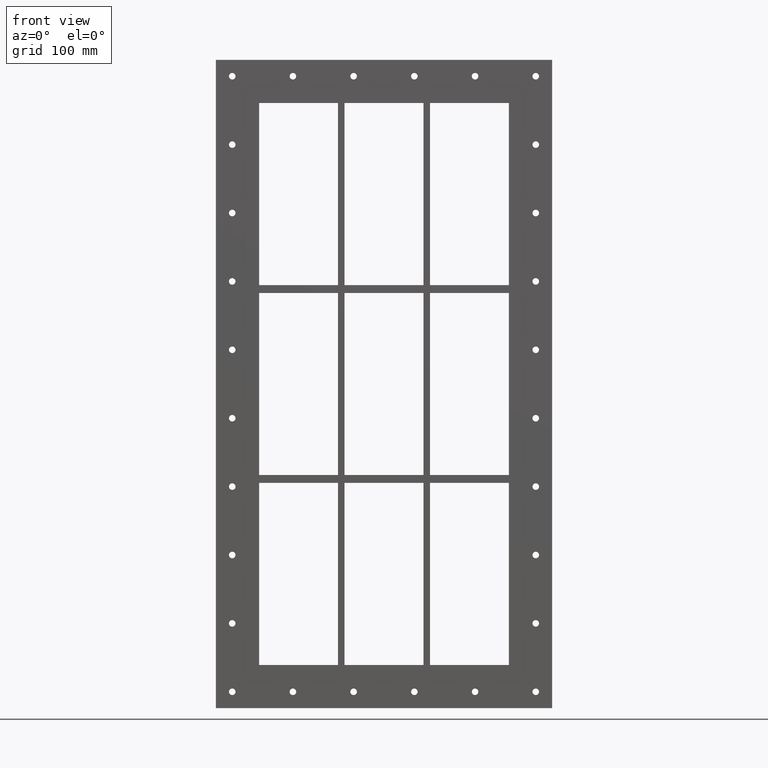
[diagram: clean part render]
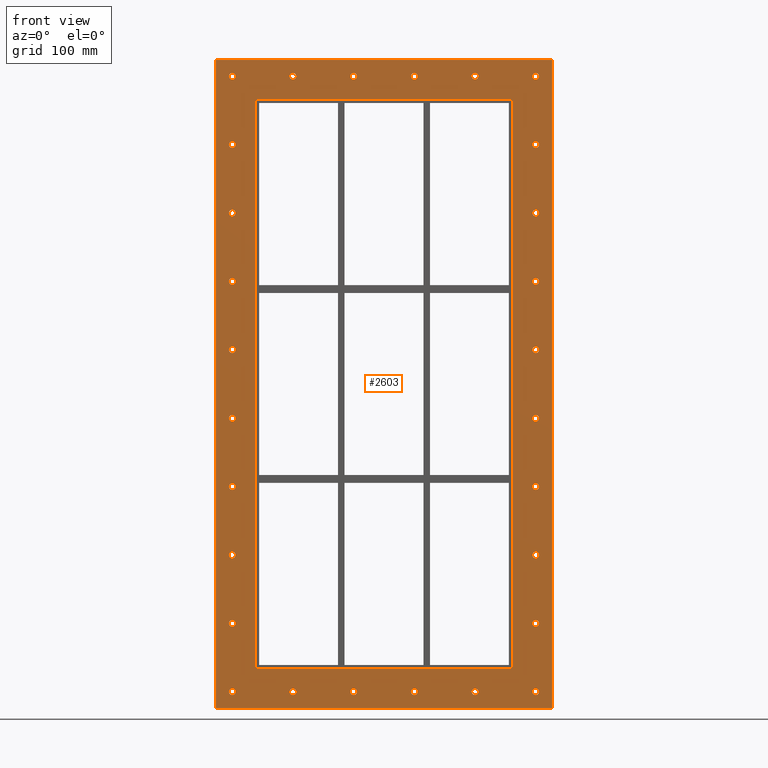
[diagram: same view with one face highlighted and labeled with its STEP entity id]
A machine part, front view. The second image highlights one B-rep face of the part: STEP entity #2603.
In plain terms, the highlighted planar face has unit normal (0, 1, 0).
Its self-contained STEP definition (entity closure, byte-faithful):
#84=CARTESIAN_POINT('',(-226.75000000000009,0.0,-470.00000000000006));
#85=VERTEX_POINT('',#84);
#86=CARTESIAN_POINT('',(-231.75000000000009,0.0,-470.00000000000006));
#87=DIRECTION('',(0.0,1.0,0.0));
#88=DIRECTION('',(1.0,0.0,0.0));
#89=AXIS2_PLACEMENT_3D('',#86,#87,#88);
#90=CIRCLE('',#89,5.0);
#91=EDGE_CURVE('',#85,#85,#90,.T.);
#112=CARTESIAN_POINT('',(236.75,0.0,-365.56000000000006));
#113=VERTEX_POINT('',#112);
#114=CARTESIAN_POINT('',(231.75,0.0,-365.56000000000006));
#115=DIRECTION('',(0.0,1.0,0.0));
#116=DIRECTION('',(1.0,0.0,0.0));
#117=AXIS2_PLACEMENT_3D('',#114,#115,#116);
#118=CIRCLE('',#117,5.0);
#119=EDGE_CURVE('',#113,#113,#118,.T.);
#140=CARTESIAN_POINT('',(-226.75000000000009,0.0,-365.56000000000006));
#141=VERTEX_POINT('',#140);
#142=CARTESIAN_POINT('',(-231.75000000000009,0.0,-365.56000000000006));
#143=DIRECTION('',(0.0,1.0,0.0));
#144=DIRECTION('',(1.0,0.0,0.0));
#145=AXIS2_PLACEMENT_3D('',#142,#143,#144);
#146=CIRCLE('',#145,5.0);
#147=EDGE_CURVE('',#141,#141,#146,.T.);
#168=CARTESIAN_POINT('',(236.75,0.0,-261.12));
#169=VERTEX_POINT('',#168);
#170=CARTESIAN_POINT('',(231.75,0.0,-261.12));
#171=DIRECTION('',(0.0,1.0,0.0));
#172=DIRECTION('',(1.0,0.0,0.0));
#173=AXIS2_PLACEMENT_3D('',#170,#171,#172);
#174=CIRCLE('',#173,5.0);
#175=EDGE_CURVE('',#169,#169,#174,.T.);
#196=CARTESIAN_POINT('',(-226.75000000000009,0.0,-261.12));
#197=VERTEX_POINT('',#196);
#198=CARTESIAN_POINT('',(-231.75000000000009,0.0,-261.12));
#199=DIRECTION('',(0.0,1.0,0.0));
#200=DIRECTION('',(1.0,0.0,0.0));
#201=AXIS2_PLACEMENT_3D('',#198,#199,#200);
#202=CIRCLE('',#201,5.0);
#203=EDGE_CURVE('',#197,#197,#202,.T.);
#224=CARTESIAN_POINT('',(236.75,0.0,-156.67999999999998));
#225=VERTEX_POINT('',#224);
#226=CARTESIAN_POINT('',(231.75,0.0,-156.67999999999998));
#227=DIRECTION('',(0.0,1.0,0.0));
#228=DIRECTION('',(1.0,0.0,0.0));
#229=AXIS2_PLACEMENT_3D('',#226,#227,#228);
#230=CIRCLE('',#229,5.0);
#231=EDGE_CURVE('',#225,#225,#230,.T.);
#252=CARTESIAN_POINT('',(-226.75000000000009,0.0,-156.67999999999998));
#253=VERTEX_POINT('',#252);
#254=CARTESIAN_POINT('',(-231.75000000000009,0.0,-156.67999999999998));
#255=DIRECTION('',(0.0,1.0,0.0));
#256=DIRECTION('',(1.0,0.0,0.0));
#257=AXIS2_PLACEMENT_3D('',#254,#255,#256);
#258=CIRCLE('',#257,5.0);
#259=EDGE_CURVE('',#253,#253,#258,.T.);
#280=CARTESIAN_POINT('',(236.75,0.0,-52.240000000000023));
#281=VERTEX_POINT('',#280);
#282=CARTESIAN_POINT('',(231.75,0.0,-52.240000000000023));
#283=DIRECTION('',(0.0,1.0,0.0));
#284=DIRECTION('',(1.0,0.0,0.0));
#285=AXIS2_PLACEMENT_3D('',#282,#283,#284);
#286=CIRCLE('',#285,5.0);
#287=EDGE_CURVE('',#281,#281,#286,.T.);
#308=CARTESIAN_POINT('',(-226.75000000000009,0.0,-52.240000000000023));
#309=VERTEX_POINT('',#308);
#310=CARTESIAN_POINT('',(-231.75000000000009,0.0,-52.240000000000023));
#311=DIRECTION('',(0.0,1.0,0.0));
#312=DIRECTION('',(1.0,0.0,0.0));
#313=AXIS2_PLACEMENT_3D('',#310,#311,#312);
#314=CIRCLE('',#313,5.0);
#315=EDGE_CURVE('',#309,#309,#314,.T.);
#336=CARTESIAN_POINT('',(236.75,0.0,52.200000000000003));
#337=VERTEX_POINT('',#336);
#338=CARTESIAN_POINT('',(231.75,0.0,52.200000000000003));
#339=DIRECTION('',(0.0,1.0,0.0));
#340=DIRECTION('',(1.0,0.0,0.0));
#341=AXIS2_PLACEMENT_3D('',#338,#339,#340);
#342=CIRCLE('',#341,5.0);
#343=EDGE_CURVE('',#337,#337,#342,.T.);
#364=CARTESIAN_POINT('',(-226.75000000000009,0.0,52.200000000000003));
#365=VERTEX_POINT('',#364);
#366=CARTESIAN_POINT('',(-231.75000000000009,0.0,52.200000000000003));
#367=DIRECTION('',(0.0,1.0,0.0));
#368=DIRECTION('',(1.0,0.0,0.0));
#369=AXIS2_PLACEMENT_3D('',#366,#367,#368);
#370=CIRCLE('',#369,5.0);
#371=EDGE_CURVE('',#365,#365,#370,.T.);
#392=CARTESIAN_POINT('',(236.75,0.0,156.64000000000004));
#393=VERTEX_POINT('',#392);
#394=CARTESIAN_POINT('',(231.75,0.0,156.64000000000004));
#395=DIRECTION('',(0.0,1.0,0.0));
#396=DIRECTION('',(1.0,0.0,0.0));
#397=AXIS2_PLACEMENT_3D('',#394,#395,#396);
#398=CIRCLE('',#397,5.0);
#399=EDGE_CURVE('',#393,#393,#398,.T.);
#420=CARTESIAN_POINT('',(-226.75000000000009,0.0,156.64000000000004));
#421=VERTEX_POINT('',#420);
#422=CARTESIAN_POINT('',(-231.75000000000009,0.0,156.64000000000004));
#423=DIRECTION('',(0.0,1.0,0.0));
#424=DIRECTION('',(1.0,0.0,0.0));
#425=AXIS2_PLACEMENT_3D('',#422,#423,#424);
#426=CIRCLE('',#425,5.0);
#427=EDGE_CURVE('',#421,#421,#426,.T.);
#448=CARTESIAN_POINT('',(236.75,0.0,261.07999999999998));
#449=VERTEX_POINT('',#448);
#450=CARTESIAN_POINT('',(231.75,0.0,261.07999999999998));
#451=DIRECTION('',(0.0,1.0,0.0));
#452=DIRECTION('',(1.0,0.0,0.0));
#453=AXIS2_PLACEMENT_3D('',#450,#451,#452);
#454=CIRCLE('',#453,5.0);
#455=EDGE_CURVE('',#449,#449,#454,.T.);
#476=CARTESIAN_POINT('',(-226.75000000000009,0.0,261.07999999999998));
#477=VERTEX_POINT('',#476);
#478=CARTESIAN_POINT('',(-231.75000000000009,0.0,261.07999999999998));
#479=DIRECTION('',(0.0,1.0,0.0));
#480=DIRECTION('',(1.0,0.0,0.0));
#481=AXIS2_PLACEMENT_3D('',#478,#479,#480);
#482=CIRCLE('',#481,5.0);
#483=EDGE_CURVE('',#477,#477,#482,.T.);
#504=CARTESIAN_POINT('',(236.75,0.0,365.51999999999998));
#505=VERTEX_POINT('',#504);
#506=CARTESIAN_POINT('',(231.75,0.0,365.51999999999998));
#507=DIRECTION('',(0.0,1.0,0.0));
#508=DIRECTION('',(1.0,0.0,0.0));
#509=AXIS2_PLACEMENT_3D('',#506,#507,#508);
#510=CIRCLE('',#509,5.0);
#511=EDGE_CURVE('',#505,#505,#510,.T.);
#532=CARTESIAN_POINT('',(-226.75000000000009,0.0,365.51999999999998));
#533=VERTEX_POINT('',#532);
#534=CARTESIAN_POINT('',(-231.75000000000009,0.0,365.51999999999998));
#535=DIRECTION('',(0.0,1.0,0.0));
#536=DIRECTION('',(1.0,0.0,0.0));
#537=AXIS2_PLACEMENT_3D('',#534,#535,#536);
#538=CIRCLE('',#537,5.0);
#539=EDGE_CURVE('',#533,#533,#538,.T.);
#560=CARTESIAN_POINT('',(-134.05000000000004,0.0,469.96000000000004));
#561=VERTEX_POINT('',#560);
#562=CARTESIAN_POINT('',(-139.05000000000004,0.0,469.96000000000004));
#563=DIRECTION('',(0.0,1.0,0.0));
#564=DIRECTION('',(1.0,0.0,0.0));
#565=AXIS2_PLACEMENT_3D('',#562,#563,#564);
#566=CIRCLE('',#565,5.0);
#567=EDGE_CURVE('',#561,#561,#566,.T.);
#588=CARTESIAN_POINT('',(-134.05000000000004,0.0,-470.00000000000006));
#589=VERTEX_POINT('',#588);
#590=CARTESIAN_POINT('',(-139.05000000000004,0.0,-470.00000000000006));
#591=DIRECTION('',(0.0,1.0,0.0));
#592=DIRECTION('',(1.0,0.0,0.0));
#593=AXIS2_PLACEMENT_3D('',#590,#591,#592);
#594=CIRCLE('',#593,5.0);
#595=EDGE_CURVE('',#589,#589,#594,.T.);
#616=CARTESIAN_POINT('',(-41.349999999999994,0.0,469.96000000000004));
#617=VERTEX_POINT('',#616);
#618=CARTESIAN_POINT('',(-46.349999999999994,0.0,469.96000000000004));
#619=DIRECTION('',(0.0,1.0,0.0));
#620=DIRECTION('',(1.0,0.0,0.0));
#621=AXIS2_PLACEMENT_3D('',#618,#619,#620);
#622=CIRCLE('',#621,5.0);
#623=EDGE_CURVE('',#617,#617,#622,.T.);
#644=CARTESIAN_POINT('',(-41.349999999999994,0.0,-470.00000000000006));
#645=VERTEX_POINT('',#644);
#646=CARTESIAN_POINT('',(-46.349999999999994,0.0,-470.00000000000006));
#647=DIRECTION('',(0.0,1.0,0.0));
#648=DIRECTION('',(1.0,0.0,0.0));
#649=AXIS2_PLACEMENT_3D('',#646,#647,#648);
#650=CIRCLE('',#649,5.0);
#651=EDGE_CURVE('',#645,#645,#650,.T.);
#672=CARTESIAN_POINT('',(51.34999999999998,0.0,469.96000000000004));
#673=VERTEX_POINT('',#672);
#674=CARTESIAN_POINT('',(46.34999999999998,0.0,469.96000000000004));
#675=DIRECTION('',(0.0,1.0,0.0));
#676=DIRECTION('',(1.0,0.0,0.0));
#677=AXIS2_PLACEMENT_3D('',#674,#675,#676);
#678=CIRCLE('',#677,5.0);
#679=EDGE_CURVE('',#673,#673,#678,.T.);
#700=CARTESIAN_POINT('',(51.34999999999998,0.0,-470.00000000000006));
#701=VERTEX_POINT('',#700);
#702=CARTESIAN_POINT('',(46.34999999999998,0.0,-470.00000000000006));
#703=DIRECTION('',(0.0,1.0,0.0));
#704=DIRECTION('',(1.0,0.0,0.0));
#705=AXIS2_PLACEMENT_3D('',#702,#703,#704);
#706=CIRCLE('',#705,5.0);
#707=EDGE_CURVE('',#701,#701,#706,.T.);
#728=CARTESIAN_POINT('',(144.04999999999998,0.0,469.96000000000004));
#729=VERTEX_POINT('',#728);
#730=CARTESIAN_POINT('',(139.04999999999998,0.0,469.96000000000004));
#731=DIRECTION('',(0.0,1.0,0.0));
#732=DIRECTION('',(1.0,0.0,0.0));
#733=AXIS2_PLACEMENT_3D('',#730,#731,#732);
#734=CIRCLE('',#733,5.0);
#735=EDGE_CURVE('',#729,#729,#734,.T.);
#756=CARTESIAN_POINT('',(144.04999999999998,0.0,-470.00000000000006));
#757=VERTEX_POINT('',#756);
#758=CARTESIAN_POINT('',(139.04999999999998,0.0,-470.00000000000006));
#759=DIRECTION('',(0.0,1.0,0.0));
#760=DIRECTION('',(1.0,0.0,0.0));
#761=AXIS2_PLACEMENT_3D('',#758,#759,#760);
#762=CIRCLE('',#761,5.0);
#763=EDGE_CURVE('',#757,#757,#762,.T.);
#784=CARTESIAN_POINT('',(236.75,0.0,-470.00000000000006));
#785=VERTEX_POINT('',#784);
#786=CARTESIAN_POINT('',(231.75,0.0,-470.00000000000006));
#787=DIRECTION('',(0.0,1.0,0.0));
#788=DIRECTION('',(1.0,0.0,0.0));
#789=AXIS2_PLACEMENT_3D('',#786,#787,#788);
#790=CIRCLE('',#789,5.0);
#791=EDGE_CURVE('',#785,#785,#790,.T.);
#812=CARTESIAN_POINT('',(-226.75000000000009,0.0,469.96000000000004));
#813=VERTEX_POINT('',#812);
#814=CARTESIAN_POINT('',(-231.75000000000009,0.0,469.96000000000004));
#815=DIRECTION('',(0.0,1.0,0.0));
#816=DIRECTION('',(1.0,0.0,0.0));
#817=AXIS2_PLACEMENT_3D('',#814,#815,#816);
#818=CIRCLE('',#817,5.0);
#819=EDGE_CURVE('',#813,#813,#818,.T.);
#840=CARTESIAN_POINT('',(236.75,0.0,469.96000000000004));
#841=VERTEX_POINT('',#840);
#842=CARTESIAN_POINT('',(231.75,0.0,469.96000000000004));
#843=DIRECTION('',(0.0,1.0,0.0));
#844=DIRECTION('',(1.0,0.0,0.0));
#845=AXIS2_PLACEMENT_3D('',#842,#843,#844);
#846=CIRCLE('',#845,5.0);
#847=EDGE_CURVE('',#841,#841,#846,.T.);
#2410=CARTESIAN_POINT('',(0.0,0.0,0.0));
#2411=DIRECTION('',(0.0,1.0,0.0));
#2412=DIRECTION('',(0.0,0.0,1.0));
#2413=AXIS2_PLACEMENT_3D('',#2410,#2411,#2412);
#2414=PLANE('',#2413);
#2415=CARTESIAN_POINT('',(-256.75000000000006,0.0,495.00000000000006));
#2416=VERTEX_POINT('',#2415);
#2417=CARTESIAN_POINT('',(256.75000000000006,0.0,495.00000000000006));
#2418=VERTEX_POINT('',#2417);
#2419=CARTESIAN_POINT('',(-256.75000000000006,0.0,495.00000000000006));
#2420=DIRECTION('',(1.0,0.0,0.0));
#2421=VECTOR('',#2420,513.50000000000011);
#2422=LINE('',#2419,#2421);
#2423=EDGE_CURVE('',#2416,#2418,#2422,.T.);
#2424=ORIENTED_EDGE('',*,*,#2423,.F.);
#2425=CARTESIAN_POINT('',(-256.75000000000006,0.0,-495.00000000000006));
#2426=VERTEX_POINT('',#2425);
#2427=CARTESIAN_POINT('',(-256.75000000000006,0.0,-495.00000000000006));
#2428=DIRECTION('',(0.0,0.0,1.0));
#2429=VECTOR('',#2428,990.00000000000011);
#2430=LINE('',#2427,#2429);
#2431=EDGE_CURVE('',#2426,#2416,#2430,.T.);
#2432=ORIENTED_EDGE('',*,*,#2431,.F.);
#2433=CARTESIAN_POINT('',(256.75000000000006,0.0,-495.00000000000006));
#2434=VERTEX_POINT('',#2433);
#2435=CARTESIAN_POINT('',(256.75000000000006,0.0,-495.00000000000006));
#2436=DIRECTION('',(-1.0,0.0,0.0));
#2437=VECTOR('',#2436,513.50000000000011);
#2438=LINE('',#2435,#2437);
#2439=EDGE_CURVE('',#2434,#2426,#2438,.T.);
#2440=ORIENTED_EDGE('',*,*,#2439,.F.);
#2441=CARTESIAN_POINT('',(256.75000000000006,0.0,495.00000000000006));
#2442=DIRECTION('',(0.0,0.0,-1.0));
#2443=VECTOR('',#2442,990.00000000000011);
#2444=LINE('',#2441,#2443);
#2445=EDGE_CURVE('',#2418,#2434,#2444,.T.);
#2446=ORIENTED_EDGE('',*,*,#2445,.F.);
#2447=EDGE_LOOP('',(#2424,#2432,#2440,#2446));
#2448=FACE_OUTER_BOUND('',#2447,.T.);
#2449=ORIENTED_EDGE('',*,*,#91,.T.);
#2450=EDGE_LOOP('',(#2449));
#2451=FACE_BOUND('',#2450,.T.);
#2452=ORIENTED_EDGE('',*,*,#119,.T.);
#2453=EDGE_LOOP('',(#2452));
#2454=FACE_BOUND('',#2453,.T.);
#2455=ORIENTED_EDGE('',*,*,#147,.T.);
#2456=EDGE_LOOP('',(#2455));
#2457=FACE_BOUND('',#2456,.T.);
#2458=ORIENTED_EDGE('',*,*,#175,.T.);
#2459=EDGE_LOOP('',(#2458));
#2460=FACE_BOUND('',#2459,.T.);
#2461=ORIENTED_EDGE('',*,*,#203,.T.);
#2462=EDGE_LOOP('',(#2461));
#2463=FACE_BOUND('',#2462,.T.);
#2464=ORIENTED_EDGE('',*,*,#231,.T.);
#2465=EDGE_LOOP('',(#2464));
#2466=FACE_BOUND('',#2465,.T.);
#2467=ORIENTED_EDGE('',*,*,#259,.T.);
#2468=EDGE_LOOP('',(#2467));
#2469=FACE_BOUND('',#2468,.T.);
#2470=ORIENTED_EDGE('',*,*,#287,.T.);
#2471=EDGE_LOOP('',(#2470));
#2472=FACE_BOUND('',#2471,.T.);
#2473=ORIENTED_EDGE('',*,*,#315,.T.);
#2474=EDGE_LOOP('',(#2473));
#2475=FACE_BOUND('',#2474,.T.);
#2476=ORIENTED_EDGE('',*,*,#343,.T.);
#2477=EDGE_LOOP('',(#2476));
#2478=FACE_BOUND('',#2477,.T.);
#2479=ORIENTED_EDGE('',*,*,#371,.T.);
#2480=EDGE_LOOP('',(#2479));
#2481=FACE_BOUND('',#2480,.T.);
#2482=ORIENTED_EDGE('',*,*,#399,.T.);
#2483=EDGE_LOOP('',(#2482));
#2484=FACE_BOUND('',#2483,.T.);
#2485=ORIENTED_EDGE('',*,*,#427,.T.);
#2486=EDGE_LOOP('',(#2485));
#2487=FACE_BOUND('',#2486,.T.);
#2488=ORIENTED_EDGE('',*,*,#455,.T.);
#2489=EDGE_LOOP('',(#2488));
#2490=FACE_BOUND('',#2489,.T.);
#2491=ORIENTED_EDGE('',*,*,#483,.T.);
#2492=EDGE_LOOP('',(#2491));
#2493=FACE_BOUND('',#2492,.T.);
#2494=ORIENTED_EDGE('',*,*,#511,.T.);
#2495=EDGE_LOOP('',(#2494));
#2496=FACE_BOUND('',#2495,.T.);
#2497=ORIENTED_EDGE('',*,*,#539,.T.);
#2498=EDGE_LOOP('',(#2497));
#2499=FACE_BOUND('',#2498,.T.);
#2500=ORIENTED_EDGE('',*,*,#567,.T.);
#2501=EDGE_LOOP('',(#2500));
#2502=FACE_BOUND('',#2501,.T.);
#2503=ORIENTED_EDGE('',*,*,#595,.T.);
#2504=EDGE_LOOP('',(#2503));
#2505=FACE_BOUND('',#2504,.T.);
#2506=ORIENTED_EDGE('',*,*,#623,.T.);
#2507=EDGE_LOOP('',(#2506));
#2508=FACE_BOUND('',#2507,.T.);
#2509=ORIENTED_EDGE('',*,*,#651,.T.);
#2510=EDGE_LOOP('',(#2509));
#2511=FACE_BOUND('',#2510,.T.);
#2512=ORIENTED_EDGE('',*,*,#679,.T.);
#2513=EDGE_LOOP('',(#2512));
#2514=FACE_BOUND('',#2513,.T.);
#2515=ORIENTED_EDGE('',*,*,#707,.T.);
#2516=EDGE_LOOP('',(#2515));
#2517=FACE_BOUND('',#2516,.T.);
#2518=ORIENTED_EDGE('',*,*,#735,.T.);
#2519=EDGE_LOOP('',(#2518));
#2520=FACE_BOUND('',#2519,.T.);
#2521=ORIENTED_EDGE('',*,*,#763,.T.);
#2522=EDGE_LOOP('',(#2521));
#2523=FACE_BOUND('',#2522,.T.);
#2524=ORIENTED_EDGE('',*,*,#791,.T.);
#2525=EDGE_LOOP('',(#2524));
#2526=FACE_BOUND('',#2525,.T.);
#2527=ORIENTED_EDGE('',*,*,#819,.T.);
#2528=EDGE_LOOP('',(#2527));
#2529=FACE_BOUND('',#2528,.T.);
#2530=ORIENTED_EDGE('',*,*,#847,.T.);
#2531=EDGE_LOOP('',(#2530));
#2532=FACE_BOUND('',#2531,.T.);
#2533=CARTESIAN_POINT('',(-196.75000000000006,0.0,-429.00000000000023));
#2534=VERTEX_POINT('',#2533);
#2535=CARTESIAN_POINT('',(-190.75000000000003,0.0,-435.00000000000011));
#2536=VERTEX_POINT('',#2535);
#2537=CARTESIAN_POINT('',(-190.75000000000003,0.0,-429.00000000000023));
#2538=DIRECTION('',(0.0,-1.0,0.0));
#2539=DIRECTION('',(-0.707106781186552,0.0,-0.707106781186543));
#2540=AXIS2_PLACEMENT_3D('',#2537,#2538,#2539);
#2541=CIRCLE('',#2540,6.000000000000001);
#2542=EDGE_CURVE('',#2534,#2536,#2541,.T.);
#2543=ORIENTED_EDGE('',*,*,#2542,.F.);
#2544=CARTESIAN_POINT('',(-196.75000000000006,0.0,428.99999999999989));
#2545=VERTEX_POINT('',#2544);
#2546=CARTESIAN_POINT('',(-196.75000000000006,0.0,428.99999999999994));
#2547=DIRECTION('',(0.0,0.0,-1.0));
#2548=VECTOR('',#2547,858.00000000000011);
#2549=LINE('',#2546,#2548);
#2550=EDGE_CURVE('',#2545,#2534,#2549,.T.);
#2551=ORIENTED_EDGE('',*,*,#2550,.F.);
#2552=CARTESIAN_POINT('',(-190.75000000000003,0.0,435.0));
#2553=VERTEX_POINT('',#2552);
#2554=CARTESIAN_POINT('',(-190.75000000000003,0.0,428.99999999999989));
#2555=DIRECTION('',(0.0,-1.0,0.0));
#2556=DIRECTION('',(-0.707106781186543,0.0,0.707106781186552));
#2557=AXIS2_PLACEMENT_3D('',#2554,#2555,#2556);
#2558=CIRCLE('',#2557,6.0);
#2559=EDGE_CURVE('',#2553,#2545,#2558,.T.);
#2560=ORIENTED_EDGE('',*,*,#2559,.F.);
#2561=CARTESIAN_POINT('',(190.75000000000003,0.0,435.0));
#2562=VERTEX_POINT('',#2561);
#2563=CARTESIAN_POINT('',(190.75000000000003,0.0,435.0));
#2564=DIRECTION('',(-1.0,0.0,0.0));
#2565=VECTOR('',#2564,381.50000000000006);
#2566=LINE('',#2563,#2565);
#2567=EDGE_CURVE('',#2562,#2553,#2566,.T.);
#2568=ORIENTED_EDGE('',*,*,#2567,.F.);
#2569=CARTESIAN_POINT('',(196.75000000000006,0.0,429.0));
#2570=VERTEX_POINT('',#2569);
#2571=CARTESIAN_POINT('',(190.75000000000003,0.0,429.0));
#2572=DIRECTION('',(0.0,-1.0,0.0));
#2573=DIRECTION('',(0.707106781186543,0.0,0.707106781186552));
#2574=AXIS2_PLACEMENT_3D('',#2571,#2572,#2573);
#2575=CIRCLE('',#2574,6.0);
#2576=EDGE_CURVE('',#2570,#2562,#2575,.T.);
#2577=ORIENTED_EDGE('',*,*,#2576,.F.);
#2578=CARTESIAN_POINT('',(196.75000000000006,0.0,-429.00000000000006));
#2579=VERTEX_POINT('',#2578);
#2580=CARTESIAN_POINT('',(196.75000000000006,0.0,-429.0));
#2581=DIRECTION('',(0.0,0.0,1.0));
#2582=VECTOR('',#2581,858.0);
#2583=LINE('',#2580,#2582);
#2584=EDGE_CURVE('',#2579,#2570,#2583,.T.);
#2585=ORIENTED_EDGE('',*,*,#2584,.F.);
#2586=CARTESIAN_POINT('',(190.75000000000003,0.0,-435.00000000000011));
#2587=VERTEX_POINT('',#2586);
#2588=CARTESIAN_POINT('',(190.75000000000003,0.0,-429.00000000000006));
#2589=DIRECTION('',(0.0,-1.0,0.0));
#2590=DIRECTION('',(0.707106781186543,0.0,-0.707106781186552));
#2591=AXIS2_PLACEMENT_3D('',#2588,#2589,#2590);
#2592=CIRCLE('',#2591,6.0);
#2593=EDGE_CURVE('',#2587,#2579,#2592,.T.);
#2594=ORIENTED_EDGE('',*,*,#2593,.F.);
#2595=CARTESIAN_POINT('',(-190.75000000000003,0.0,-435.00000000000011));
#2596=DIRECTION('',(1.0,0.0,0.0));
#2597=VECTOR('',#2596,381.50000000000006);
#2598=LINE('',#2595,#2597);
#2599=EDGE_CURVE('',#2536,#2587,#2598,.T.);
#2600=ORIENTED_EDGE('',*,*,#2599,.F.);
#2601=EDGE_LOOP('',(#2543,#2551,#2560,#2568,#2577,#2585,#2594,#2600));
#2602=FACE_BOUND('',#2601,.T.);
#2603=ADVANCED_FACE('',(#2448,#2451,#2454,#2457,#2460,#2463,#2466,#2469,#2472,#2475,#2478,#2481,#2484,#2487,#2490,#2493,#2496,#2499,#2502,#2505,#2508,#2511,#2514,#2517,#2520,#2523,#2526,#2529,#2532,#2602),#2414,.F.);